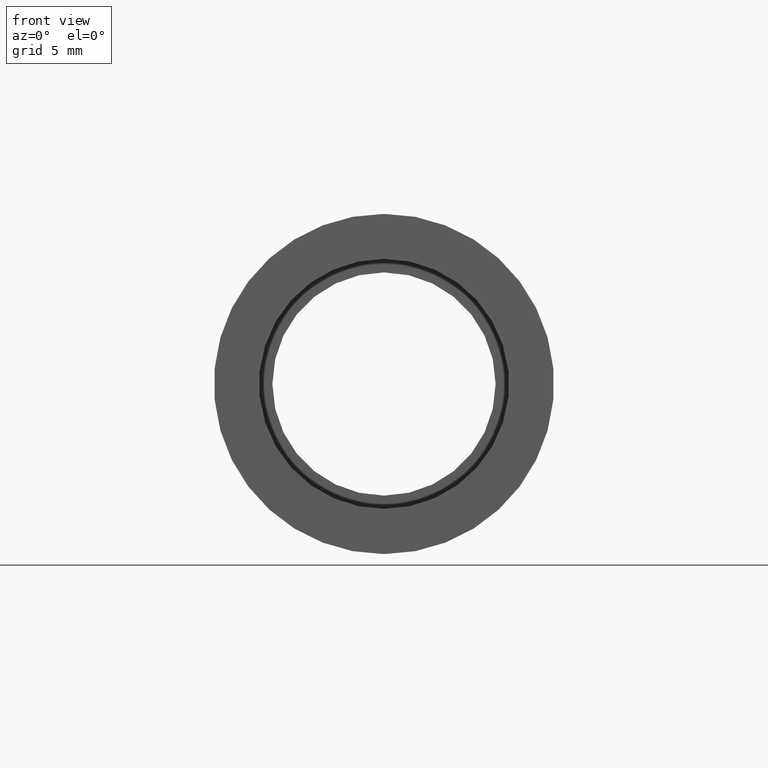
[diagram: clean part render]
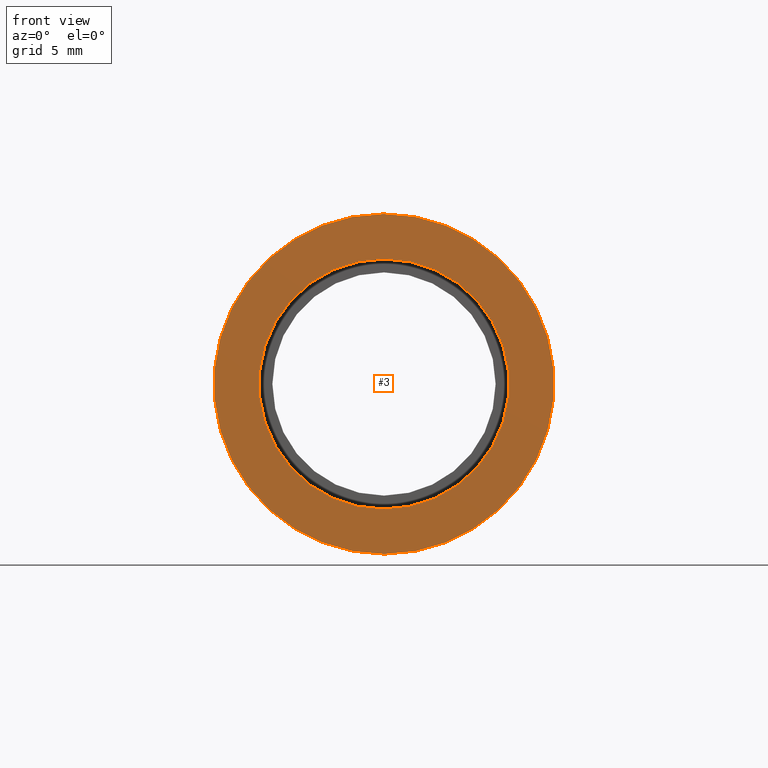
[diagram: same view with one face highlighted and labeled with its STEP entity id]
A machine part, front view. The second image highlights one B-rep face of the part: STEP entity #3.
In plain terms, the highlighted planar face has unit normal (-0, 1, 0).
Its self-contained STEP definition (entity closure, byte-faithful):
#3 = ADVANCED_FACE ( 'NONE', ( #461, #333 ), #84, .F. ) ;
#14 = CARTESIAN_POINT ( 'NONE',  ( 0.0000000000000000000, -2.775557561562891400E-014, 9.525000000000019900 ) ) ;
#21 = DIRECTION ( 'NONE',  ( -0.0000000000000000000, 1.000000000000000000, -0.0000000000000000000 ) ) ;
#31 = AXIS2_PLACEMENT_3D ( 'NONE', #563, #322, #565 ) ;
#48 = ORIENTED_EDGE ( 'NONE', *, *, #309, .T. ) ;
#70 = CIRCLE ( 'NONE', #595, 7.000000000000020400 ) ;
#71 = CARTESIAN_POINT ( 'NONE',  ( 0.0000000000000000000, -2.775557561562891400E-014, 0.0000000000000000000 ) ) ;
#84 = PLANE ( 'NONE',  #479 ) ;
#86 = CARTESIAN_POINT ( 'NONE',  ( 7.000000000000020400, -1.634585625335647100E-014, 0.0000000000000000000 ) ) ;
#98 = EDGE_CURVE ( 'NONE', #275, #172, #70, .T. ) ;
#100 = AXIS2_PLACEMENT_3D ( 'NONE', #71, #21, #300 ) ;
#131 = DIRECTION ( 'NONE',  ( 0.0000000000000000000, 0.0000000000000000000, 1.000000000000000000 ) ) ;
#150 = DIRECTION ( 'NONE',  ( 0.0000000000000000000, 0.0000000000000000000, 1.000000000000000000 ) ) ;
#172 = VERTEX_POINT ( 'NONE', #507 ) ;
#178 = CARTESIAN_POINT ( 'NONE',  ( 0.0000000000000000000, -2.775557561562891400E-014, 0.0000000000000000000 ) ) ;
#211 = EDGE_LOOP ( 'NONE', ( #48, #448 ) ) ;
#223 = EDGE_CURVE ( 'NONE', #588, #321, #268, .T. ) ;
#231 = AXIS2_PLACEMENT_3D ( 'NONE', #335, #278, #150 ) ;
#234 = CARTESIAN_POINT ( 'NONE',  ( 1.166476076187856400E-015, -2.775557561562891400E-014, -9.525000000000019900 ) ) ;
#268 = CIRCLE ( 'NONE', #31, 9.525000000000019900 ) ;
#274 = CARTESIAN_POINT ( 'NONE',  ( 8.572527594031496900E-016, -2.775557561562891400E-014, -7.000000000000020400 ) ) ;
#275 = VERTEX_POINT ( 'NONE', #274 ) ;
#278 = DIRECTION ( 'NONE',  ( -0.0000000000000000000, 1.000000000000000000, -0.0000000000000000000 ) ) ;
#300 = DIRECTION ( 'NONE',  ( 0.0000000000000000000, 0.0000000000000000000, 1.000000000000000000 ) ) ;
#309 = EDGE_CURVE ( 'NONE', #172, #275, #608, .T. ) ;
#321 = VERTEX_POINT ( 'NONE', #234 ) ;
#322 = DIRECTION ( 'NONE',  ( -0.0000000000000000000, 1.000000000000000000, -0.0000000000000000000 ) ) ;
#333 = FACE_BOUND ( 'NONE', #211, .T. ) ;
#335 = CARTESIAN_POINT ( 'NONE',  ( 0.0000000000000000000, -2.775557561562891400E-014, 0.0000000000000000000 ) ) ;
#397 = ORIENTED_EDGE ( 'NONE', *, *, #223, .F. ) ;
#417 = CIRCLE ( 'NONE', #100, 9.525000000000019900 ) ;
#437 = EDGE_CURVE ( 'NONE', #321, #588, #417, .T. ) ;
#442 = ORIENTED_EDGE ( 'NONE', *, *, #437, .F. ) ;
#448 = ORIENTED_EDGE ( 'NONE', *, *, #98, .T. ) ;
#456 = DIRECTION ( 'NONE',  ( -0.0000000000000000000, 1.000000000000000000, 0.0000000000000000000 ) ) ;
#461 = FACE_OUTER_BOUND ( 'NONE', #615, .T. ) ;
#468 = DIRECTION ( 'NONE',  ( 0.0000000000000000000, 0.0000000000000000000, 1.000000000000000000 ) ) ;
#479 = AXIS2_PLACEMENT_3D ( 'NONE', #86, #456, #131 ) ;
#507 = CARTESIAN_POINT ( 'NONE',  ( 0.0000000000000000000, -2.775557561562891400E-014, 7.000000000000020400 ) ) ;
#508 = DIRECTION ( 'NONE',  ( -0.0000000000000000000, 1.000000000000000000, -0.0000000000000000000 ) ) ;
#563 = CARTESIAN_POINT ( 'NONE',  ( 0.0000000000000000000, -2.775557561562891400E-014, 0.0000000000000000000 ) ) ;
#565 = DIRECTION ( 'NONE',  ( 0.0000000000000000000, 0.0000000000000000000, 1.000000000000000000 ) ) ;
#588 = VERTEX_POINT ( 'NONE', #14 ) ;
#595 = AXIS2_PLACEMENT_3D ( 'NONE', #178, #508, #468 ) ;
#608 = CIRCLE ( 'NONE', #231, 7.000000000000020400 ) ;
#615 = EDGE_LOOP ( 'NONE', ( #397, #442 ) ) ;